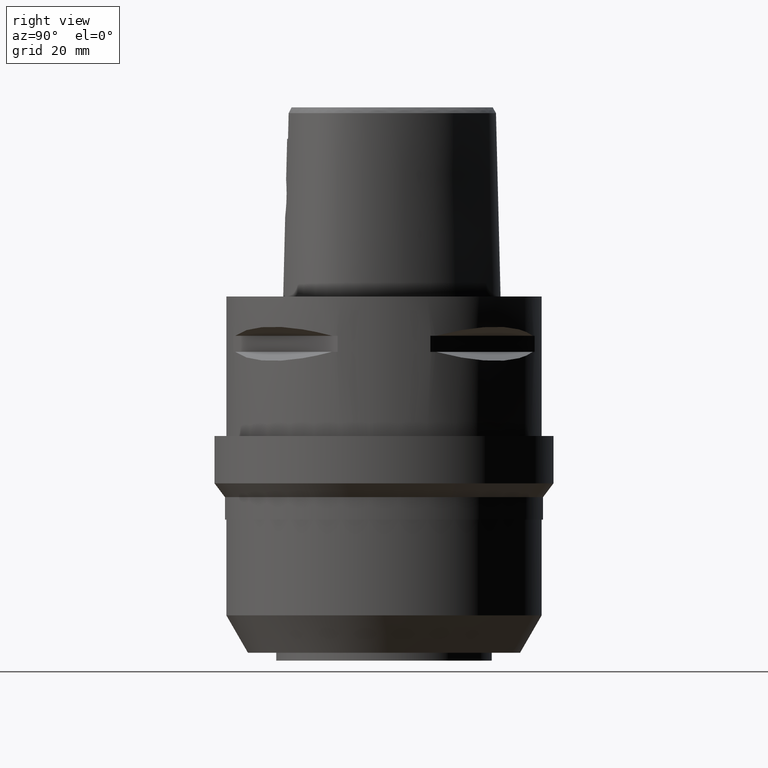
[diagram: clean part render]
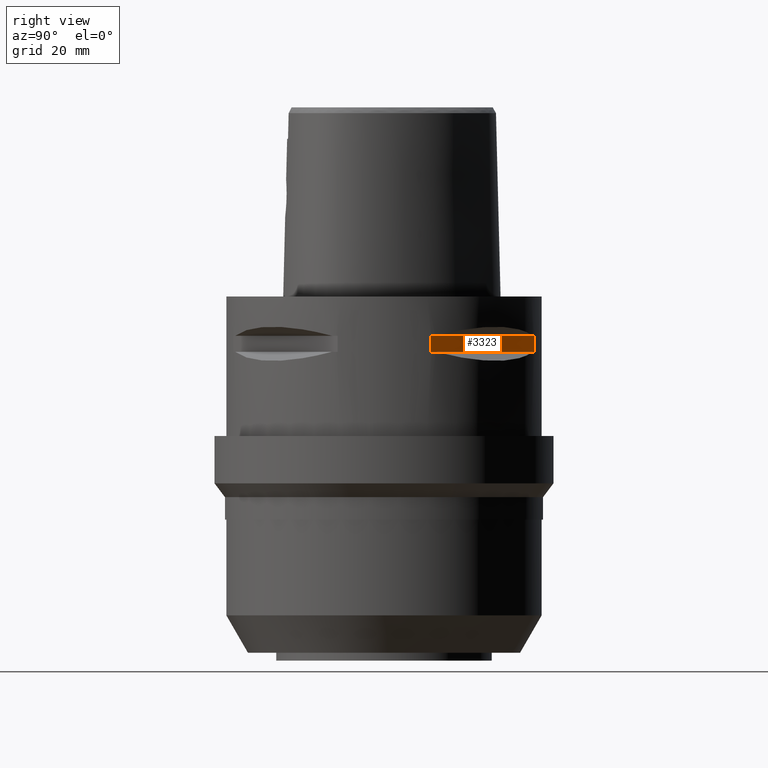
[diagram: same view with one face highlighted and labeled with its STEP entity id]
A machine part, right view. The second image highlights one B-rep face of the part: STEP entity #3323.
In plain terms, the highlighted planar face has unit normal (-0.7071, -0.7071, 0).
Its self-contained STEP definition (entity closure, byte-faithful):
#485=DIRECTION('',(0.E0,0.E0,-1.E0));
#486=VECTOR('',#485,4.1E0);
#487=CARTESIAN_POINT('',(3.823211342708E1,1.176033600281E1,-9.95E0));
#488=LINE('',#487,#486);
#503=DIRECTION('',(0.E0,0.E0,1.E0));
#504=VECTOR('',#503,4.1E0);
#505=CARTESIAN_POINT('',(1.176033600281E1,3.823211342708E1,-1.405E1));
#506=LINE('',#505,#504);
#1331=DIRECTION('',(-7.071067811865E-1,7.071067811865E-1,0.E0));
#1332=VECTOR('',#1331,3.743674665352E1);
#1333=CARTESIAN_POINT('',(3.823211342708E1,1.176033600281E1,-9.95E0));
#1334=LINE('',#1333,#1332);
#1354=DIRECTION('',(-7.071067811865E-1,7.071067811865E-1,0.E0));
#1355=VECTOR('',#1354,3.743674665352E1);
#1356=CARTESIAN_POINT('',(3.823211342708E1,1.176033600281E1,-1.405E1));
#1357=LINE('',#1356,#1355);
#1581=CARTESIAN_POINT('',(3.823211342708E1,1.176033600281E1,-9.95E0));
#1582=VERTEX_POINT('',#1581);
#1583=CARTESIAN_POINT('',(3.823211342708E1,1.176033600281E1,-1.405E1));
#1584=VERTEX_POINT('',#1583);
#1588=CARTESIAN_POINT('',(1.176033600281E1,3.823211342708E1,-1.405E1));
#1589=VERTEX_POINT('',#1588);
#1590=CARTESIAN_POINT('',(1.176033600281E1,3.823211342708E1,-9.95E0));
#1591=VERTEX_POINT('',#1590);
#3311=CARTESIAN_POINT('',(7.318555185281E0,4.267389424461E1,-9.95E0));
#3312=DIRECTION('',(-7.071067811865E-1,-7.071067811865E-1,0.E0));
#3313=DIRECTION('',(0.E0,0.E0,-1.E0));
#3314=AXIS2_PLACEMENT_3D('',#3311,#3312,#3313);
#3315=PLANE('',#3314);
#3316=ORIENTED_EDGE('',*,*,#2523,.F.);
#3318=ORIENTED_EDGE('',*,*,#3317,.F.);
#3319=ORIENTED_EDGE('',*,*,#2515,.F.);
#3320=ORIENTED_EDGE('',*,*,#3304,.T.);
#3321=EDGE_LOOP('',(#3316,#3318,#3319,#3320));
#3322=FACE_OUTER_BOUND('',#3321,.F.);
#2515=EDGE_CURVE('',#1582,#1584,#488,.T.);
#2523=EDGE_CURVE('',#1589,#1591,#506,.T.);
#3304=EDGE_CURVE('',#1582,#1591,#1334,.T.);
#3317=EDGE_CURVE('',#1584,#1589,#1357,.T.);
#3323=ADVANCED_FACE('',(#3322),#3315,.F.);